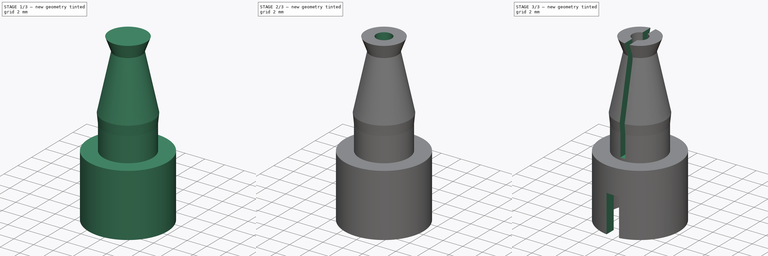
[diagram: build sequence overview — one tinted view per stage of 3, left to right]
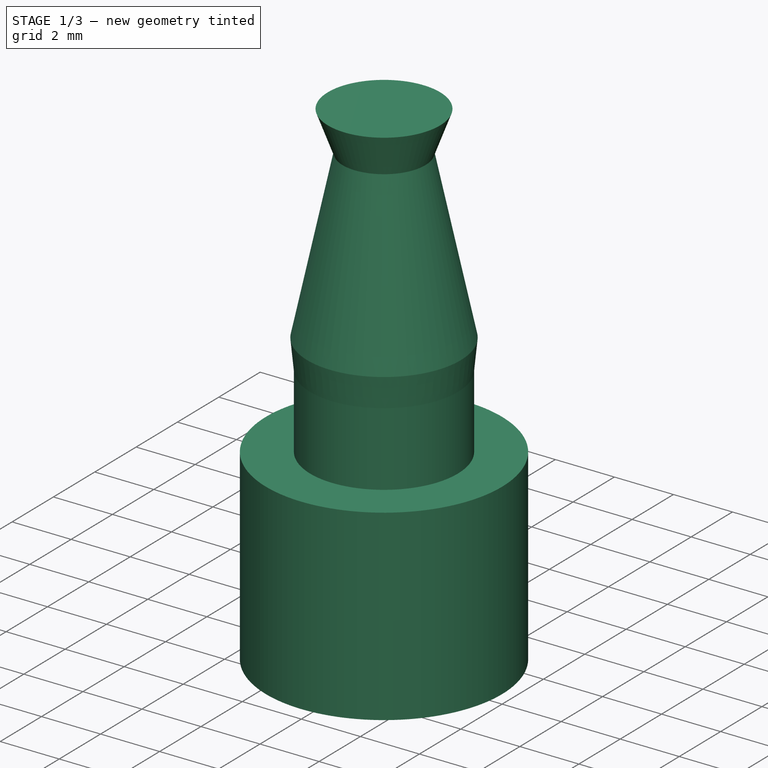
[diagram: stage 1 of 3 — iso view after this stage's code; geometry added in this stage tinted green]
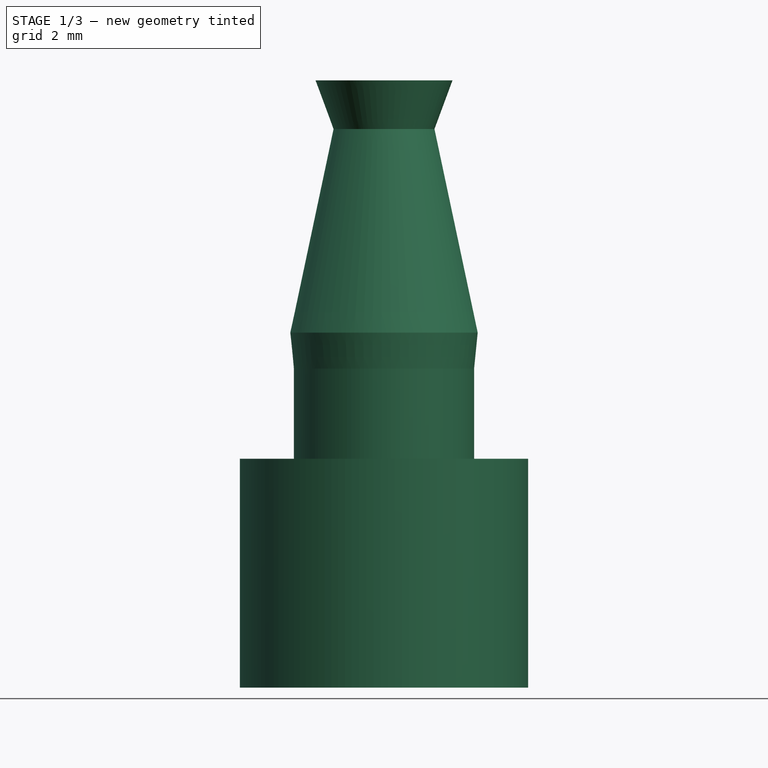
[diagram: stage 1 of 3 — front view after this stage's code; geometry added in this stage tinted green]
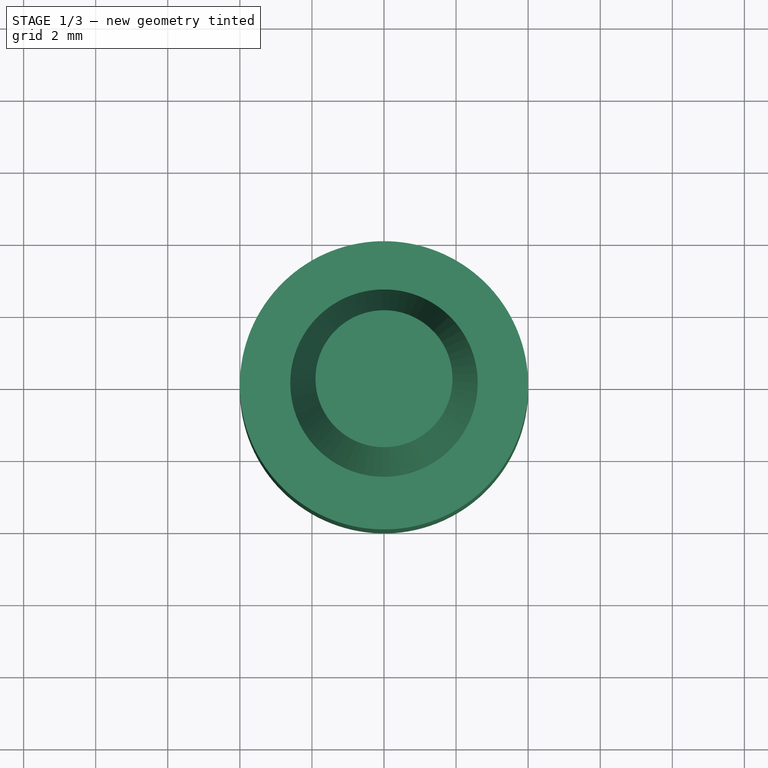
[diagram: stage 1 of 3 — top view after this stage's code; geometry added in this stage tinted green]
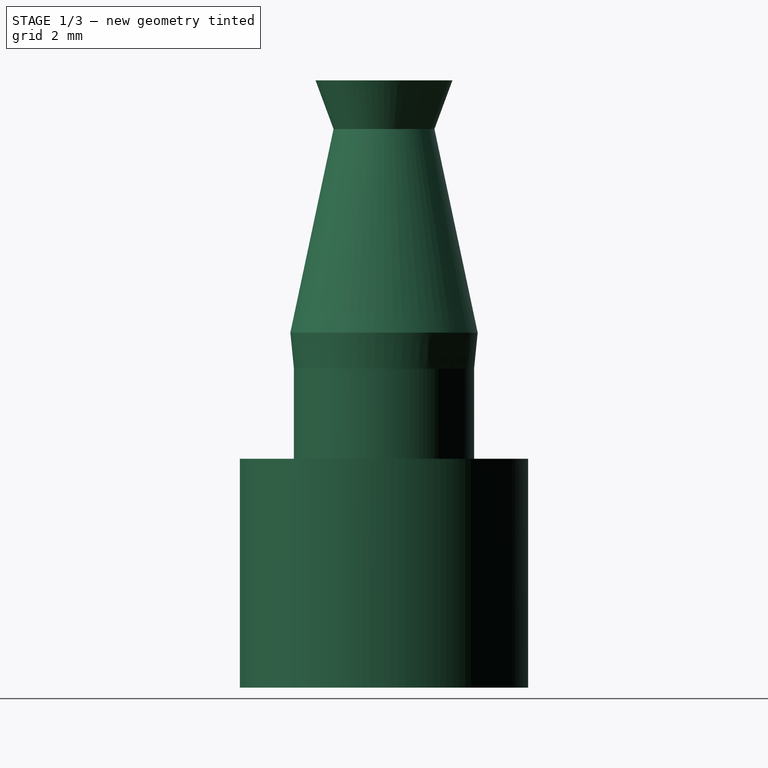
[diagram: stage 1 of 3 — right view after this stage's code; geometry added in this stage tinted green]
FCSTD DOCUMENT  (FreeCAD 0.19R24291 (Git))
Label: LaserDiode_a
License: All rights reserved
LicenseURL: http://en.wikipedia.org/wiki/All_rights_reserved
objects: Sketcher::SketchObject×5, PartDesign::Pocket×4, PartDesign::Revolution×1, PartDesign::Body×1
note: 16 computed .brp shape members not serialized (recipe doc carries the construction recipe); baked Part::Feature solids carry a one-line shape summary decoded from their .brp

FEATURE [Sketcher::SketchObject] Sketch
  FullyConstrained = false
  MapMode = 5
  Placement = pos=(0,0,0) rot=(1,0,0;1.5708rad)
  Support = -> [XZ_Plane]
  sketch-geometry (10):
    g0: LineSegment StartX=2.5 StartY=0 StartZ=0 EndX=4 EndY=0 EndZ=0
    g1: LineSegment StartX=4 StartY=0 StartZ=0 EndX=4 EndY=-6.35 EndZ=0
    g2: LineSegment StartX=4 StartY=-6.35 StartZ=0 EndX=0 EndY=-6.35 EndZ=0
    g3: LineSegment StartX=0 StartY=-6.35 StartZ=0 EndX=0 EndY=0 EndZ=0
    g4: LineSegment StartX=2.6 StartY=3.5 StartZ=0 EndX=1.4 EndY=9.15 EndZ=0
    g5: LineSegment StartX=1.4 StartY=9.15 StartZ=0 EndX=1.9 EndY=10.5 EndZ=0
    g6: LineSegment StartX=1.9 StartY=10.5 StartZ=0 EndX=0 EndY=10.5 EndZ=0
    g7: LineSegment StartX=0 StartY=10.5 StartZ=0 EndX=0 EndY=0 EndZ=0
    g8: LineSegment StartX=2.6 StartY=3.5 StartZ=0 EndX=2.5 EndY=2.5 EndZ=0
    g9: LineSegment StartX=2.5 StartY=2.5 StartZ=0 EndX=2.5 EndY=0 EndZ=0
  constraints (28):
    c: Coincident(g0,g1)
    c: Coincident(g1,g2)
    c: Coincident(g2,g3)
    c: Horizontal(g0)
    c: Horizontal(g2)
    c: Vertical(g1)
    c: Vertical(g3)
    c: Coincident(g3,g-1)
    c: DistanceY(g1,g1) = 6.35
    c: DistanceX(g2,g2) = 4
    c: Coincident(g4,g5)
    c: Coincident(g5,g6)
    c: Coincident(g6,g7)
    c: DistanceX(g3,g6) = 0
    c: Horizontal(g6)
    c: DistanceY(g4,g5) = 7
    c: Vertical(g9)
    c: Coincident(g9,g0)
    c: DistanceY(g3,g0) = 0
    c: Coincident(g8,g9)
    c: Coincident(g8,g4)
    c: DistanceY(g9,g9) = 2.5
    c: DistanceX(g3,g0) = 2.5
    c: DistanceX(g3,g4) = 2.6
    c: DistanceY(g8,g4) = 1
    c: DistanceX(g6,g5) = 1.9
    c: DistanceX(g6,g4) = 1.4
    c: DistanceY(g4,g5) = 1.35
FEATURE [PartDesign::Revolution] Revolution  label="Main_body"
  Angle = 360
  Axis = (-3e-16,3e-16,1)
  Base = (0,0,0)
  Placement = pos=(0,0,0) rot=(1,0,0;1.5708rad)
  Profile = -> Sketch
  ReferenceAxis = -> Z_Axis
  Reversed = true
FEATURE [Sketcher::SketchObject] Sketch001
  FullyConstrained = true
  MapMode = 5
  Placement = pos=(2.1e-15,-2.1e-15,-6.35) rot=(1,0,0;3.14159rad)
  Support = -> [Revolution]
  sketch-geometry (1):
    g0: Circle CenterX=0 CenterY=0 CenterZ=0 NormalX=0 NormalY=0 NormalZ=1 AngleXU=0 Radius=2.9845
  constraints (2):
    c: Coincident(g0,g-1)
    c: Radius(g0) = 2.9845
FEATURE [PartDesign::Pocket] Pocket  label="LED_body"
  BaseFeature = -> Revolution
  Length = 5.588
  Length2 = 99.9998
  Placement = pos=(0,0,0) rot=(1,0,0;1.5708rad)
  Profile = -> Sketch001
  Type = 0
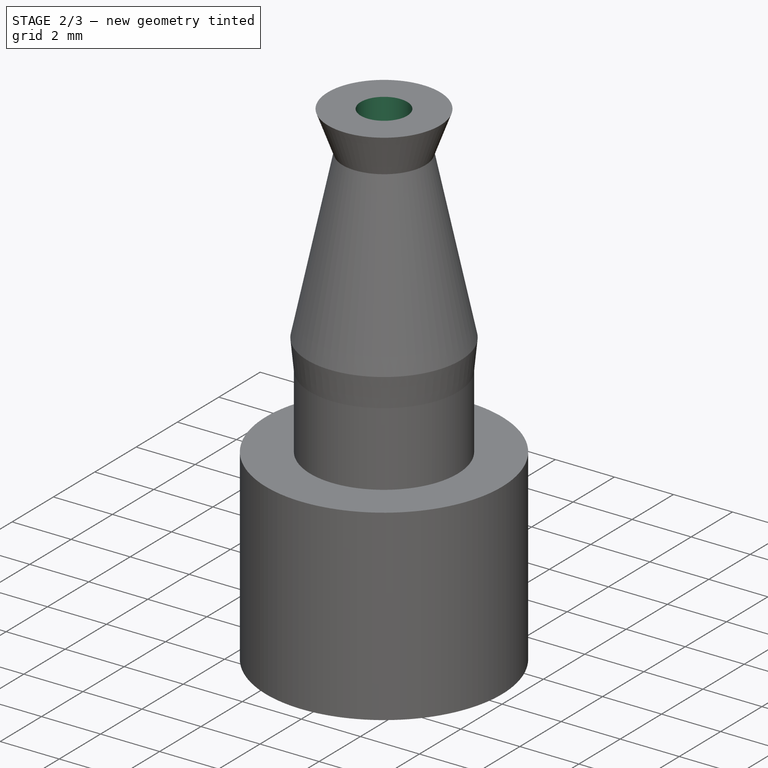
[diagram: stage 2 of 3 — iso view after this stage's code; geometry added in this stage tinted green]
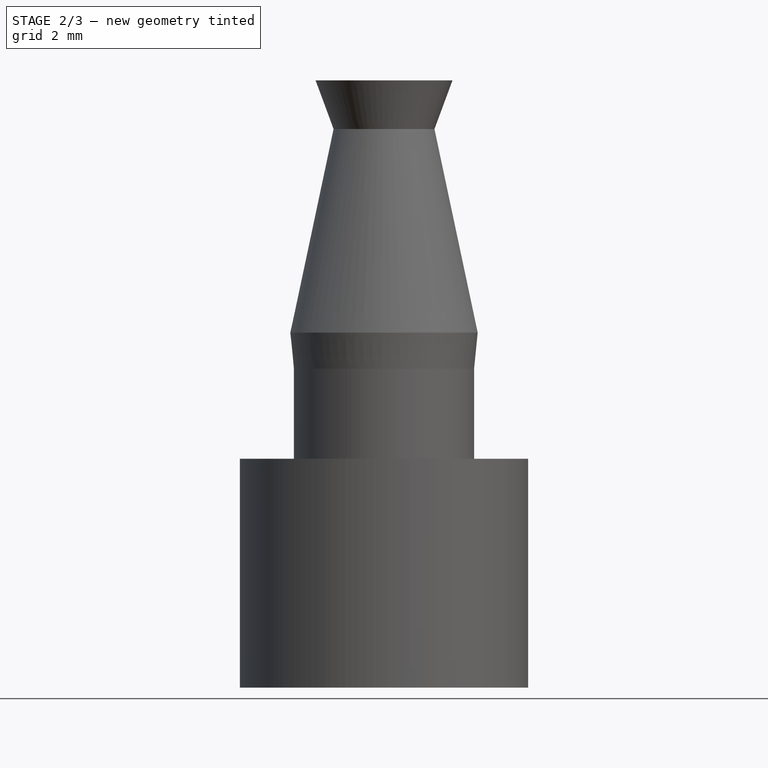
[diagram: stage 2 of 3 — front view after this stage's code; geometry added in this stage tinted green]
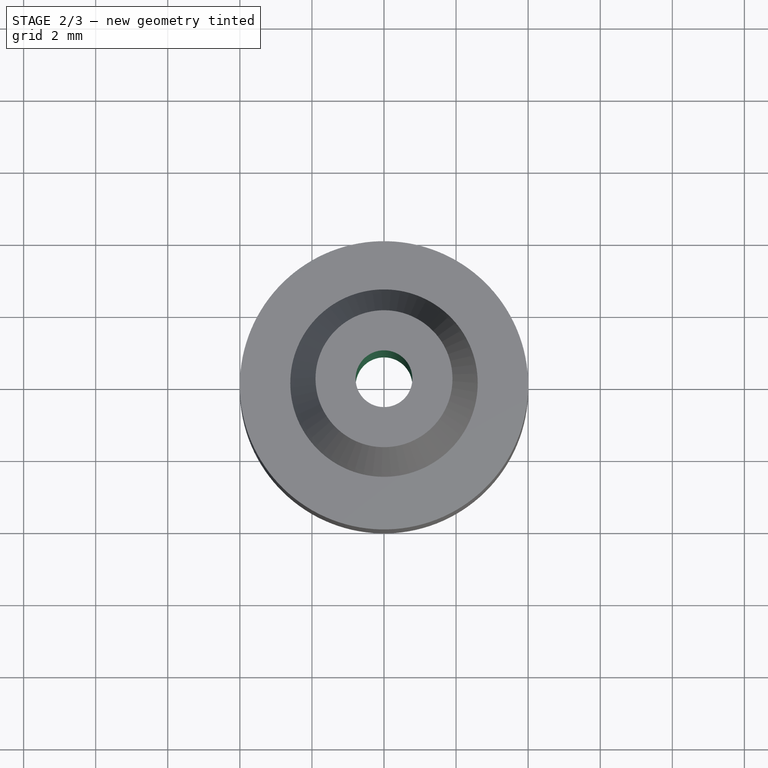
[diagram: stage 2 of 3 — top view after this stage's code; geometry added in this stage tinted green]
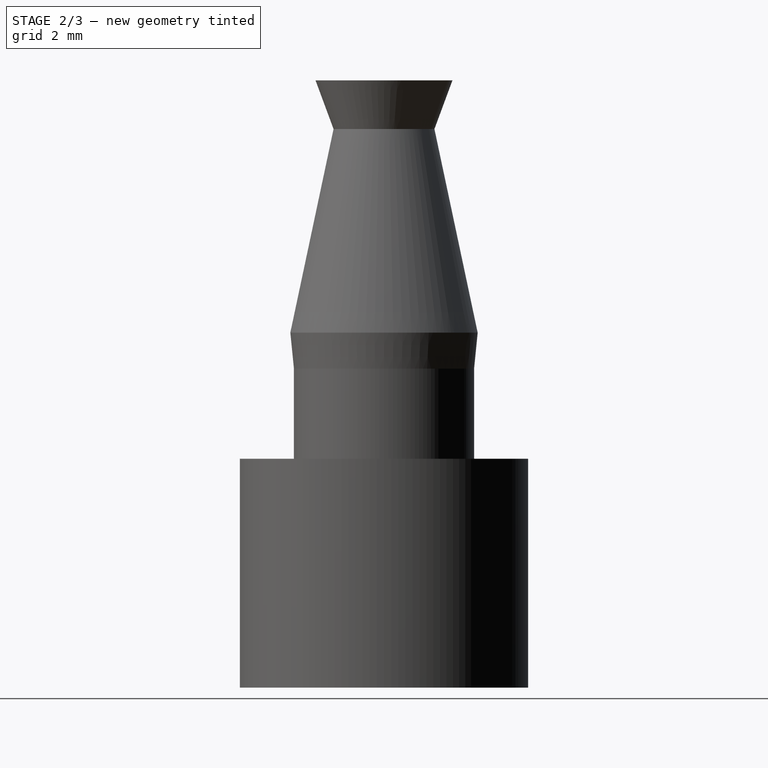
[diagram: stage 2 of 3 — right view after this stage's code; geometry added in this stage tinted green]
FEATURE [Sketcher::SketchObject] Sketch002
  FullyConstrained = true
  MapMode = 5
  Placement = pos=(-3.5e-15,3.5e-15,10.5) rot=(0,0,1;3.14159rad)
  Support = -> [Pocket]
  sketch-geometry (1):
    g0: Circle CenterX=0 CenterY=0 CenterZ=0 NormalX=0 NormalY=0 NormalZ=1 AngleXU=0 Radius=0.7874
  constraints (2):
    c: Radius(g0) = 0.7874
    c: Coincident(g0,g-1)
FEATURE [PartDesign::Pocket] Pocket001  label="Fiber_channel"
  BaseFeature = -> Pocket
  Length = 5.0038
  Length2 = 99.9998
  Placement = pos=(0,0,0) rot=(1,0,0;1.5708rad)
  Profile = -> Sketch002
  Type = 1
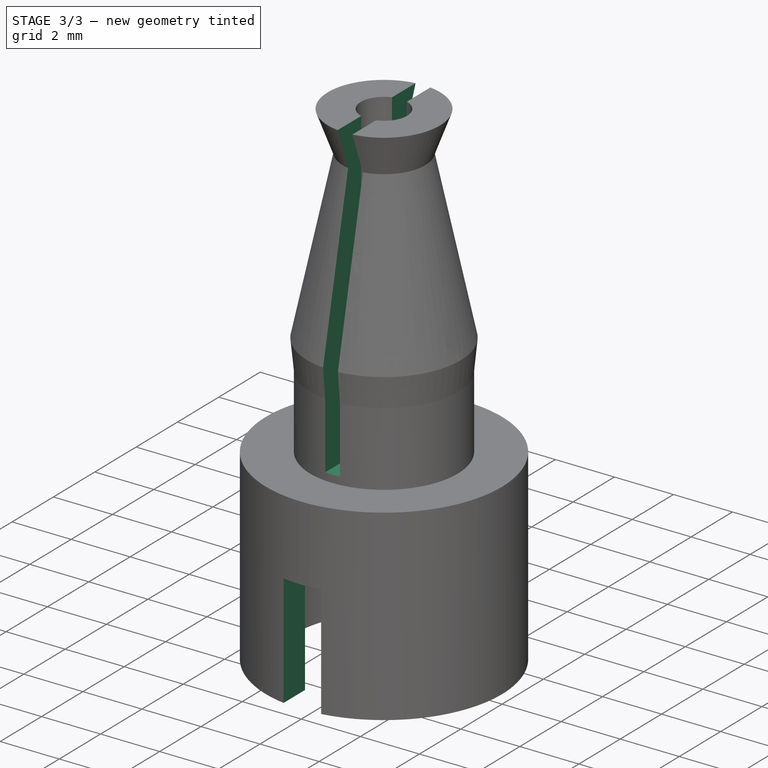
[diagram: stage 3 of 3 — iso view after this stage's code; geometry added in this stage tinted green]
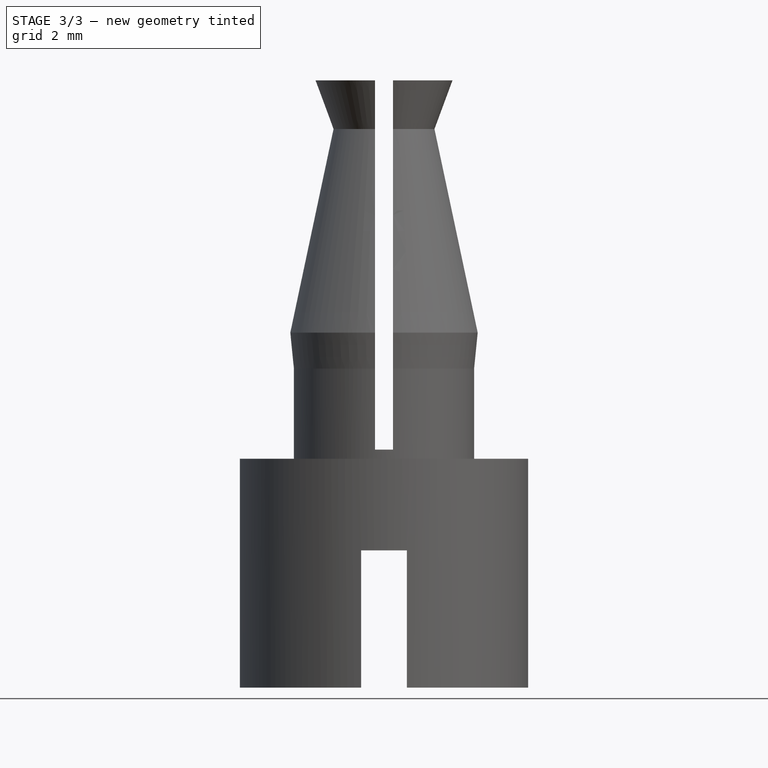
[diagram: stage 3 of 3 — front view after this stage's code; geometry added in this stage tinted green]
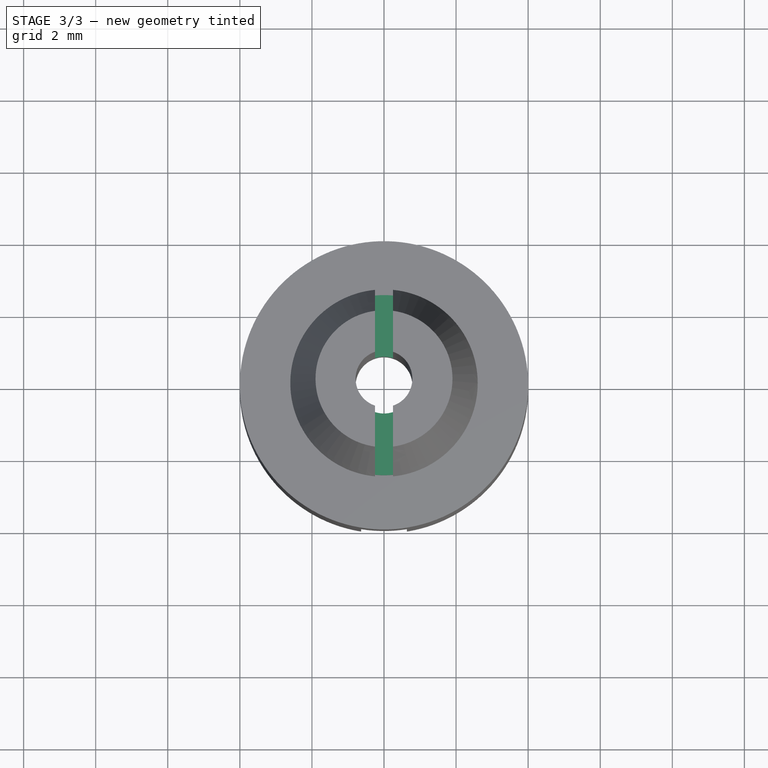
[diagram: stage 3 of 3 — top view after this stage's code; geometry added in this stage tinted green]
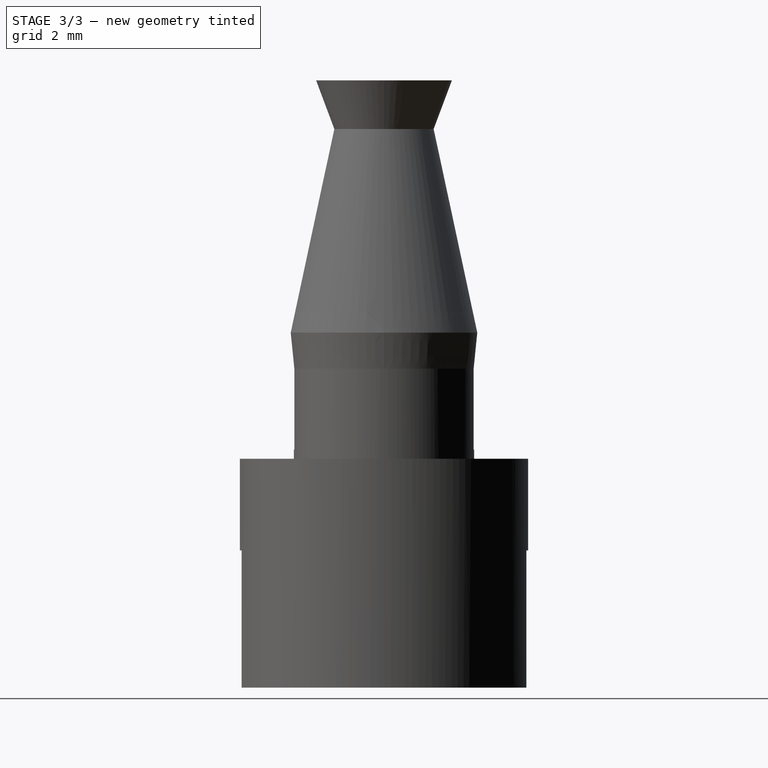
[diagram: stage 3 of 3 — right view after this stage's code; geometry added in this stage tinted green]
FEATURE [Sketcher::SketchObject] Sketch004
  FullyConstrained = false
  MapMode = 5
  Placement = pos=(0,0,0) rot=(1,0,0;1.5708rad)
  Support = -> [XZ_Plane]
  sketch-geometry (8):
    g0: LineSegment StartX=-0.25 StartY=12.9421 StartZ=0 EndX=0.25 EndY=12.9421 EndZ=0
    g1: LineSegment StartX=0.25 StartY=12.9421 StartZ=0 EndX=0.25 EndY=0.254 EndZ=0
    g2: LineSegment StartX=0.25 StartY=0.254 StartZ=0 EndX=-0.25 EndY=0.254 EndZ=0
    g3: LineSegment StartX=-0.25 StartY=0.254 StartZ=0 EndX=-0.25 EndY=12.9421 EndZ=0
    g4: LineSegment StartX=-0.25 StartY=-10.4146 StartZ=0 EndX=0.25 EndY=-10.4146 EndZ=0
    g5: LineSegment StartX=0.25 StartY=-10.4146 StartZ=0 EndX=0.25 EndY=-16.5367 EndZ=0
    g6: LineSegment StartX=0.25 StartY=-16.5367 StartZ=0 EndX=-0.25 EndY=-16.5367 EndZ=0
    g7: LineSegment StartX=-0.25 StartY=-16.5367 StartZ=0 EndX=-0.25 EndY=-10.4146 EndZ=0
  constraints (21):
    c: Coincident(g0,g1)
    c: Coincident(g1,g2)
    c: Coincident(g2,g3)
    c: Coincident(g3,g0)
    c: Horizontal(g0)
    c: Horizontal(g2)
    c: Vertical(g1)
    c: Vertical(g3)
    c: Coincident(g4,g5)
    c: Coincident(g5,g6)
    c: Coincident(g6,g7)
    c: Coincident(g7,g4)
    c: Horizontal(g4)
    c: Horizontal(g6)
    c: Vertical(g5)
    c: Vertical(g7)
    c: DistanceX(g2,g-1) = 0.25
    c: DistanceX(g2,g2) = 0.5
    c: DistanceX(g4,g-1) = 0.25
    c: DistanceX(g4,g4) = 0.5
    c: DistanceY(g-1,g1) = 0.254
FEATURE [PartDesign::Pocket] Pocket003  label="Stress_slot"
  BaseFeature = -> Pocket001
  Length = 5.0038
  Length2 = 5.0038
  Placement = pos=(0,0,0) rot=(1,0,0;1.5708rad)
  Profile = -> Sketch004
  Type = 4
FEATURE [Sketcher::SketchObject] Sketch005
  FullyConstrained = true
  MapMode = 5
  Placement = pos=(0,0,0) rot=(1,0,0;1.5708rad)
  Support = -> [XZ_Plane]
  sketch-geometry (4):
    g0: LineSegment StartX=-0.635 StartY=-15.24 StartZ=0 EndX=0.635 EndY=-15.24 EndZ=0
    g1: LineSegment StartX=0.635 StartY=-15.24 StartZ=0 EndX=0.635 EndY=-2.54 EndZ=0
    g2: LineSegment StartX=0.635 StartY=-2.54 StartZ=0 EndX=-0.635 EndY=-2.54 EndZ=0
    g3: LineSegment StartX=-0.635 StartY=-2.54 StartZ=0 EndX=-0.635 EndY=-15.24 EndZ=0
  constraints (12):
    c: Coincident(g0,g1)
    c: Coincident(g1,g2)
    c: Coincident(g2,g3)
    c: Coincident(g3,g0)
    c: Horizontal(g0)
    c: Horizontal(g2)
    c: Vertical(g1)
    c: Vertical(g3)
    c: DistanceX(g2,g-1) = 0.635
    c: DistanceX(g-1,g1) = 0.635
    c: DistanceY(g1,g-1) = 2.54
    c: DistanceY(g0,g1) = 12.7
FEATURE [PartDesign::Pocket] Pocket004
  BaseFeature = -> Pocket003
  Length = 25.4
  Length2 = 23.7998
  Placement = pos=(0,0,0) rot=(1,0,0;1.5708rad)
  Profile = -> Sketch005
  Type = 4
FEATURE [PartDesign::Body] Body
  Group = -> [Sketch,Revolution,Sketch001,Pocket,Sketch002,Pocket001,Sketch004,Pocket003,Sketch005,Pocket004]
  Origin = -> Origin
  Tip = -> Pocket004
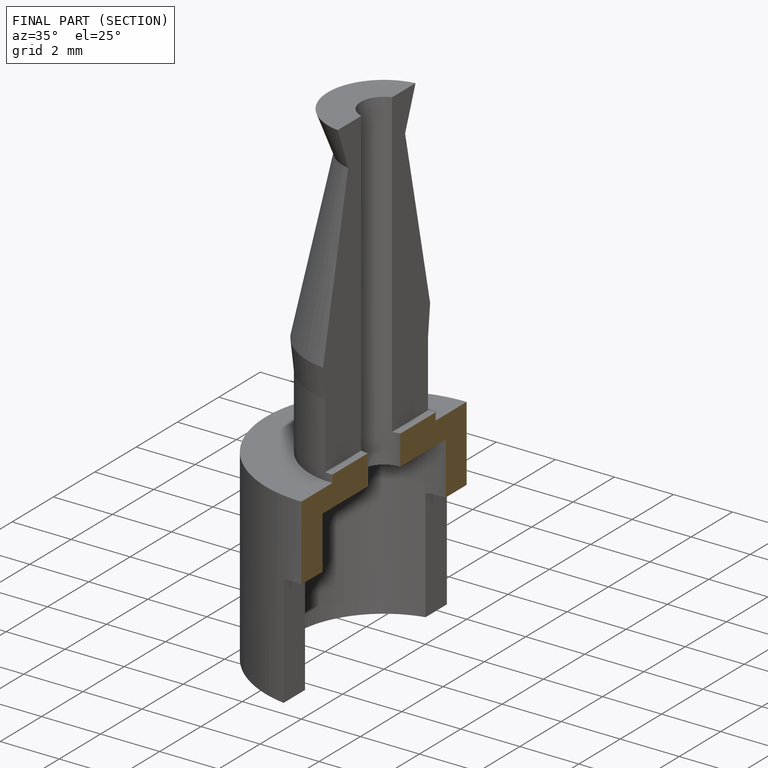
[diagram: finished part — half-section view (interior)]
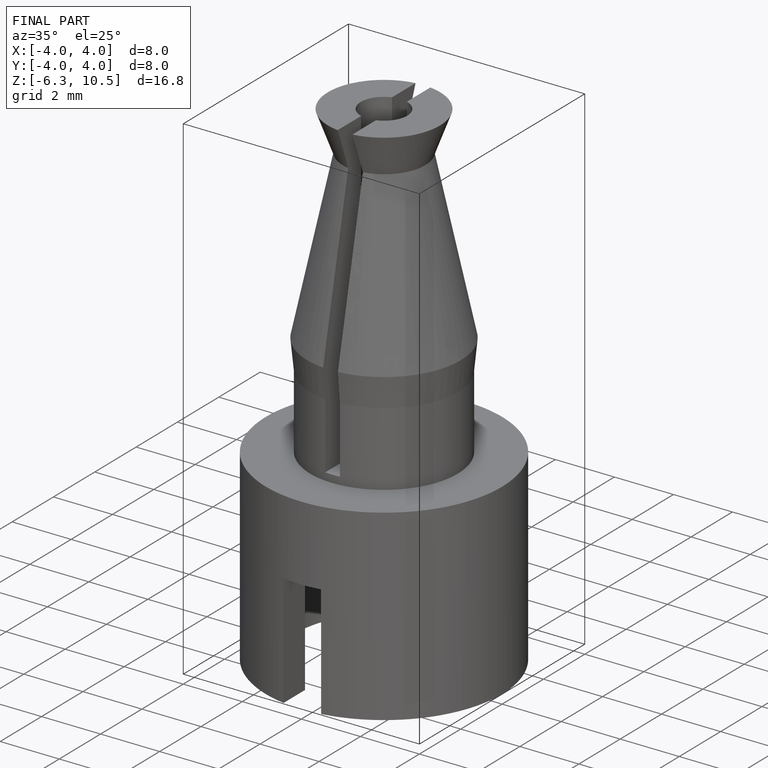
[diagram: finished part — iso view with bounding-box wireframe]
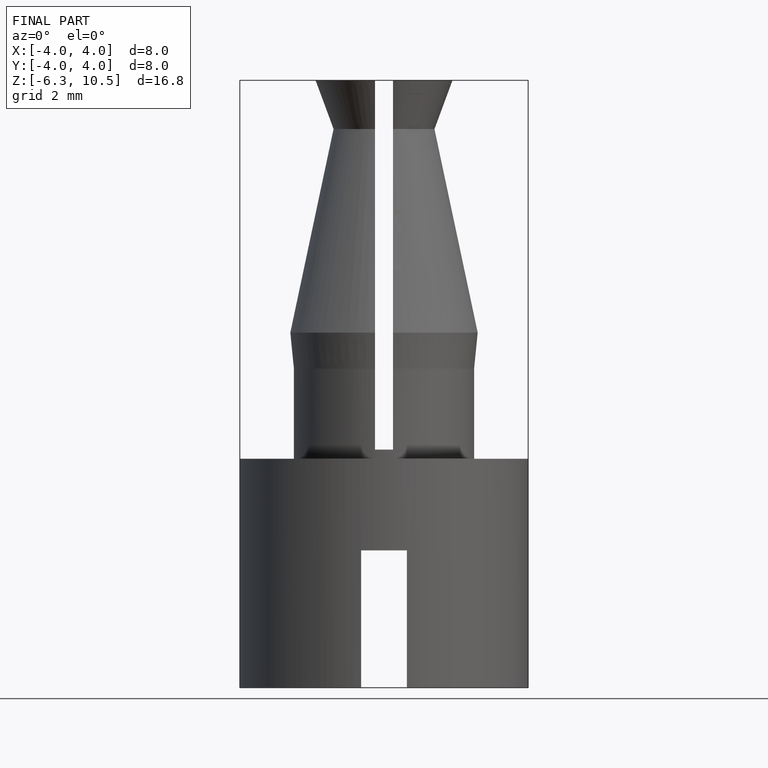
[diagram: finished part — front view with bounding-box wireframe]
